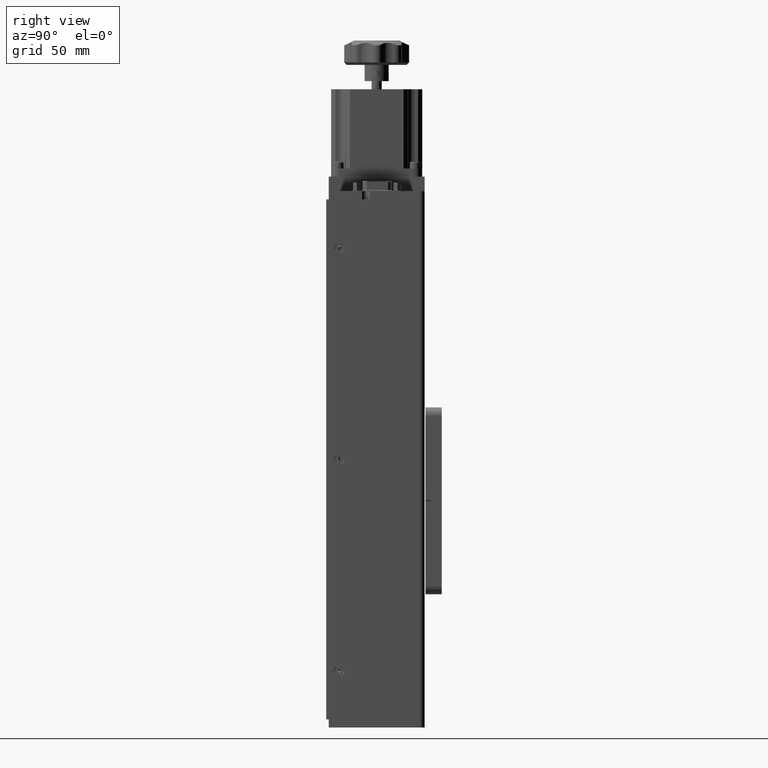
[diagram: clean part render]
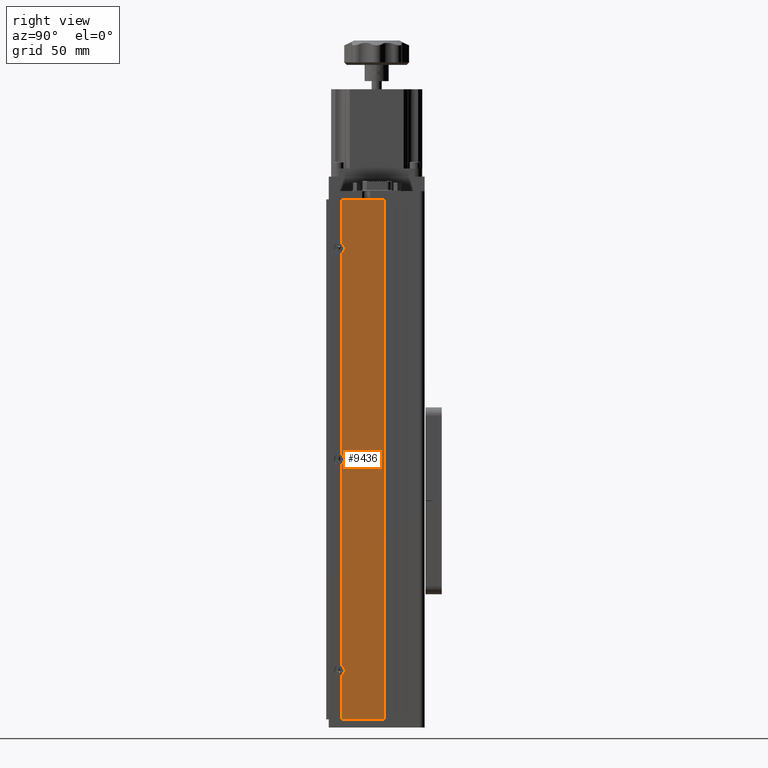
[diagram: same view with one face highlighted and labeled with its STEP entity id]
A machine part, right view. The second image highlights one B-rep face of the part: STEP entity #9436.
In plain terms, the highlighted planar face has unit normal (-1, 0, 0).
Its self-contained STEP definition (entity closure, byte-faithful):
#958 = CARTESIAN_POINT ( 'NONE',  ( 65.71988329892541000, 25.39557601279244300, 97.23929929348793200 ) ) ;
#2615 = CARTESIAN_POINT ( 'NONE',  ( 65.71988329892541000, -0.8544239872076238000, 64.34793283452775400 ) ) ;
#3061 = DIRECTION ( 'NONE',  ( -0.0000000000000000000, -0.0000000000000000000, -1.000000000000000000 ) ) ;
#3595 = DIRECTION ( 'NONE',  ( 1.000000000000000000, -0.0000000000000000000, -0.0000000000000000000 ) ) ;
#3744 = CARTESIAN_POINT ( 'NONE',  ( 65.71988329892541000, 25.39557601279244300, -222.7607007065120700 ) ) ;
#3932 = VECTOR ( 'NONE', #38034, 1000.000000000000000 ) ;
#4260 = DIRECTION ( 'NONE',  ( -0.0000000000000000000, -0.0000000000000000000, -1.000000000000000000 ) ) ;
#4979 = ORIENTED_EDGE ( 'NONE', *, *, #24541, .T. ) ;
#5029 = DIRECTION ( 'NONE',  ( -0.0000000000000000000, -0.0000000000000000000, -1.000000000000000000 ) ) ;
#5063 = LINE ( 'NONE', #958, #38880 ) ;
#5720 = EDGE_CURVE ( 'NONE', #25524, #14795, #5063, .T. ) ;
#5774 = CARTESIAN_POINT ( 'NONE',  ( 65.71988329892541000, -0.8544239872076151400, -189.8693342475519000 ) ) ;
#6471 = LINE ( 'NONE', #13676, #40301 ) ;
#6909 = EDGE_CURVE ( 'NONE', #15448, #25524, #21173, .T. ) ;
#7145 = ORIENTED_EDGE ( 'NONE', *, *, #14304, .F. ) ;
#7236 = DIRECTION ( 'NONE',  ( -0.0000000000000000000, -0.0000000000000000000, -1.000000000000000000 ) ) ;
#7445 = CARTESIAN_POINT ( 'NONE',  ( 65.71988329892541000, -2.104423987207653600, 67.23929929348793200 ) ) ;
#7800 = AXIS2_PLACEMENT_3D ( 'NONE', #23186, #3595, #26490 ) ;
#9436 = ADVANCED_FACE ( 'NONE', ( #10576 ), #41925, .F. ) ;
#9515 = CARTESIAN_POINT ( 'NONE',  ( 65.71988329892541000, -0.8544239872076211400, 97.23929929348793200 ) ) ;
#10576 = FACE_OUTER_BOUND ( 'NONE', #13431, .T. ) ;
#10585 = DIRECTION ( 'NONE',  ( 1.000000000000000000, -0.0000000000000000000, -0.0000000000000000000 ) ) ;
#10752 = DIRECTION ( 'NONE',  ( 0.0000000000000000000, 0.0000000000000000000, -1.000000000000000000 ) ) ;
#12355 = VERTEX_POINT ( 'NONE', #5774 ) ;
#12801 = DIRECTION ( 'NONE',  ( 0.0000000000000000000, 0.0000000000000000000, 1.000000000000000000 ) ) ;
#13205 = VERTEX_POINT ( 'NONE', #20967 ) ;
#13431 = EDGE_LOOP ( 'NONE', ( #38169, #13481, #33042, #15498, #25918, #21455, #26235, #7145, #4979, #33940 ) ) ;
#13481 = ORIENTED_EDGE ( 'NONE', *, *, #32875, .F. ) ;
#13676 = CARTESIAN_POINT ( 'NONE',  ( 65.71988329892541000, -0.8544239872076211400, 97.23929929348793200 ) ) ;
#14178 = EDGE_CURVE ( 'NONE', #14930, #33765, #28346, .T. ) ;
#14304 = EDGE_CURVE ( 'NONE', #39438, #37782, #22112, .T. ) ;
#14795 = VERTEX_POINT ( 'NONE', #3744 ) ;
#14930 = VERTEX_POINT ( 'NONE', #20738 ) ;
#15448 = VERTEX_POINT ( 'NONE', #17551 ) ;
#15498 = ORIENTED_EDGE ( 'NONE', *, *, #41282, .T. ) ;
#15934 = CARTESIAN_POINT ( 'NONE',  ( 65.71988329892541000, -0.8544239872076211400, -222.7607007065120700 ) ) ;
#16394 = CARTESIAN_POINT ( 'NONE',  ( 65.71988329892541000, 25.39557601279244300, 97.23929929348793200 ) ) ;
#17551 = CARTESIAN_POINT ( 'NONE',  ( 65.71988329892541000, -0.8544239872076211400, 97.23929929348793200 ) ) ;
#18380 = CARTESIAN_POINT ( 'NONE',  ( 65.71988329892541000, -0.8544239872076211400, 97.23929929348793200 ) ) ;
#18644 = LINE ( 'NONE', #32946, #35048 ) ;
#20112 = CARTESIAN_POINT ( 'NONE',  ( 65.71988329892541000, -0.8544239872076211400, 70.13066575244811000 ) ) ;
#20738 = CARTESIAN_POINT ( 'NONE',  ( 65.71988329892541000, -0.8544239872076211400, -65.65206716547228900 ) ) ;
#20967 = CARTESIAN_POINT ( 'NONE',  ( 65.71988329892541000, -0.8544239872076211400, -195.6520671654722600 ) ) ;
#21173 = LINE ( 'NONE', #30820, #36573 ) ;
#21327 = CARTESIAN_POINT ( 'NONE',  ( 65.71988329892541000, -0.8544239872076211400, 97.23929929348793200 ) ) ;
#21455 = ORIENTED_EDGE ( 'NONE', *, *, #6909, .F. ) ;
#22112 = CIRCLE ( 'NONE', #29751, 3.149999999999999900 ) ;
#22402 = LINE ( 'NONE', #21327, #35748 ) ;
#23186 = CARTESIAN_POINT ( 'NONE',  ( 65.71988329892541000, -2.104423987207621600, -62.76070070651209000 ) ) ;
#24541 = EDGE_CURVE ( 'NONE', #39438, #33765, #18644, .T. ) ;
#25524 = VERTEX_POINT ( 'NONE', #16394 ) ;
#25918 = ORIENTED_EDGE ( 'NONE', *, *, #5720, .F. ) ;
#26235 = ORIENTED_EDGE ( 'NONE', *, *, #32621, .T. ) ;
#26490 = DIRECTION ( 'NONE',  ( 0.0000000000000000000, 0.0000000000000000000, -1.000000000000000000 ) ) ;
#28346 = CIRCLE ( 'NONE', #7800, 3.149999999999999900 ) ;
#28726 = AXIS2_PLACEMENT_3D ( 'NONE', #9515, #32442, #12801 ) ;
#29751 = AXIS2_PLACEMENT_3D ( 'NONE', #7445, #30358, #10752 ) ;
#29759 = LINE ( 'NONE', #37971, #37458 ) ;
#30194 = CARTESIAN_POINT ( 'NONE',  ( 65.71988329892541000, -2.104423987207621600, -192.7607007065120700 ) ) ;
#30358 = DIRECTION ( 'NONE',  ( 1.000000000000000000, -0.0000000000000000000, -0.0000000000000000000 ) ) ;
#30820 = CARTESIAN_POINT ( 'NONE',  ( 65.71988329892541000, -0.8544239872076211400, 97.23929929348793200 ) ) ;
#31146 = CIRCLE ( 'NONE', #31986, 3.149999999999986100 ) ;
#31986 = AXIS2_PLACEMENT_3D ( 'NONE', #30194, #10585, #33493 ) ;
#32092 = CARTESIAN_POINT ( 'NONE',  ( 65.71988329892541000, -0.8544239872076211400, -59.86933424755191200 ) ) ;
#32281 = VERTEX_POINT ( 'NONE', #15934 ) ;
#32442 = DIRECTION ( 'NONE',  ( -1.000000000000000000, 0.0000000000000000000, 0.0000000000000000000 ) ) ;
#32621 = EDGE_CURVE ( 'NONE', #15448, #37782, #22402, .T. ) ;
#32875 = EDGE_CURVE ( 'NONE', #13205, #12355, #31146, .T. ) ;
#32946 = CARTESIAN_POINT ( 'NONE',  ( 65.71988329892541000, -0.8544239872076211400, 97.23929929348793200 ) ) ;
#33042 = ORIENTED_EDGE ( 'NONE', *, *, #42040, .T. ) ;
#33493 = DIRECTION ( 'NONE',  ( 0.0000000000000000000, 0.0000000000000000000, -1.000000000000000000 ) ) ;
#33765 = VERTEX_POINT ( 'NONE', #32092 ) ;
#33940 = ORIENTED_EDGE ( 'NONE', *, *, #14178, .F. ) ;
#34794 = DIRECTION ( 'NONE',  ( 0.0000000000000000000, 1.000000000000000000, 0.0000000000000000000 ) ) ;
#35048 = VECTOR ( 'NONE', #3061, 1000.000000000000000 ) ;
#35748 = VECTOR ( 'NONE', #5029, 1000.000000000000000 ) ;
#36573 = VECTOR ( 'NONE', #40711, 1000.000000000000000 ) ;
#37458 = VECTOR ( 'NONE', #34794, 1000.000000000000000 ) ;
#37776 = LINE ( 'NONE', #18380, #3932 ) ;
#37782 = VERTEX_POINT ( 'NONE', #20112 ) ;
#37971 = CARTESIAN_POINT ( 'NONE',  ( 65.71988329892541000, -0.8544239872076211400, -222.7607007065120700 ) ) ;
#38034 = DIRECTION ( 'NONE',  ( -0.0000000000000000000, -0.0000000000000000000, -1.000000000000000000 ) ) ;
#38169 = ORIENTED_EDGE ( 'NONE', *, *, #42239, .T. ) ;
#38880 = VECTOR ( 'NONE', #4260, 1000.000000000000000 ) ;
#39438 = VERTEX_POINT ( 'NONE', #2615 ) ;
#40301 = VECTOR ( 'NONE', #7236, 1000.000000000000000 ) ;
#40711 = DIRECTION ( 'NONE',  ( 0.0000000000000000000, 1.000000000000000000, 0.0000000000000000000 ) ) ;
#41282 = EDGE_CURVE ( 'NONE', #32281, #14795, #29759, .T. ) ;
#41925 = PLANE ( 'NONE',  #28726 ) ;
#42040 = EDGE_CURVE ( 'NONE', #13205, #32281, #6471, .T. ) ;
#42239 = EDGE_CURVE ( 'NONE', #14930, #12355, #37776, .T. ) ;